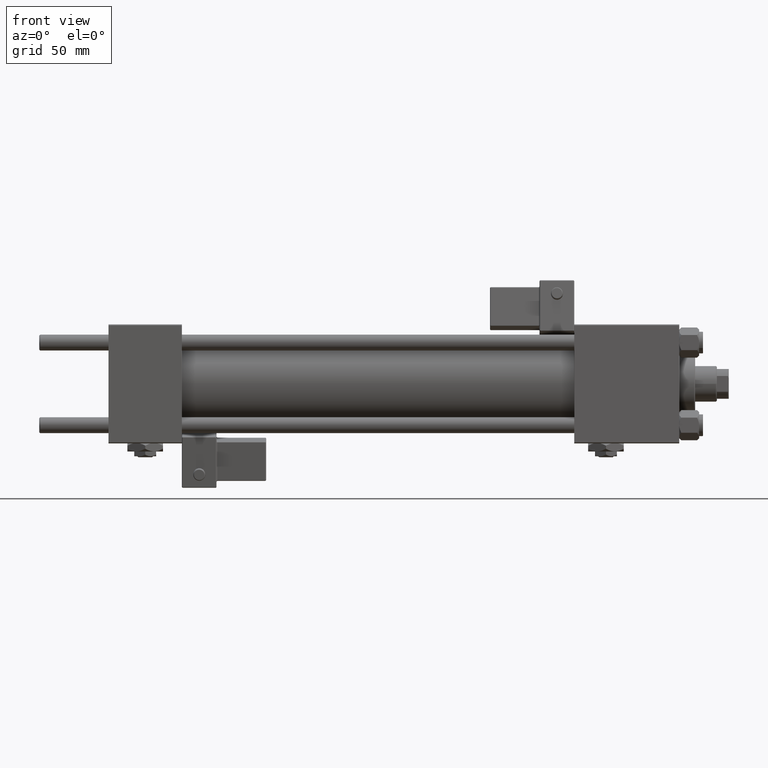
[diagram: clean part render]
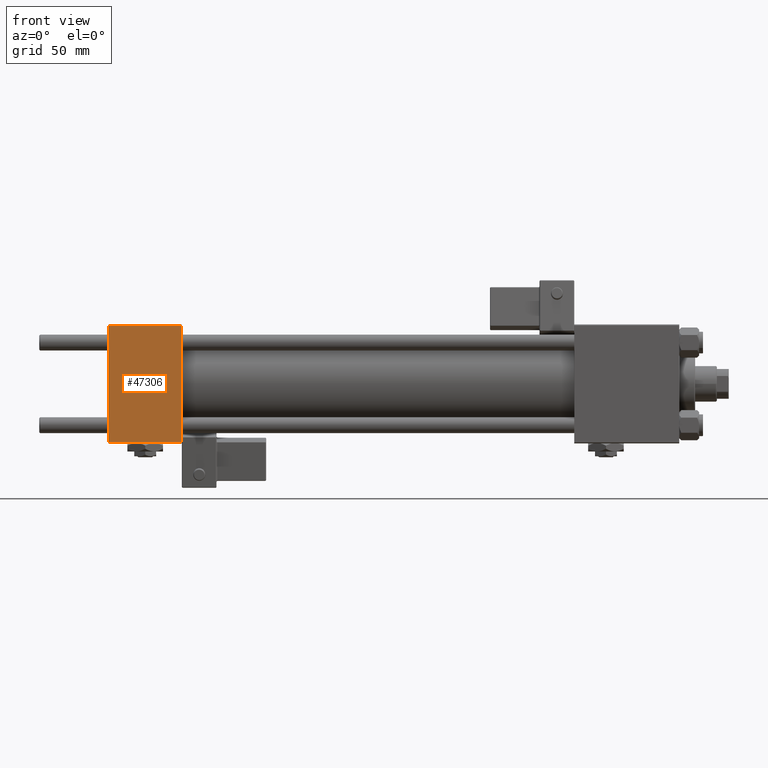
[diagram: same view with one face highlighted and labeled with its STEP entity id]
A machine part, front view. The second image highlights one B-rep face of the part: STEP entity #47306.
In plain terms, the highlighted planar face has unit normal (0, 1, 0).
Its self-contained STEP definition (entity closure, byte-faithful):
#3118 = CARTESIAN_POINT ( 'NONE',  ( 37.00000000000000000, -30.00000000000000000, 29.49999999999999289 ) ) ;
#3389 = LINE ( 'NONE', #3118, #20832 ) ;
#6400 = EDGE_CURVE ( 'NONE', #44910, #28987, #44502, .T. ) ;
#10009 = FACE_OUTER_BOUND ( 'NONE', #34285, .T. ) ;
#10231 = EDGE_CURVE ( 'NONE', #37184, #28987, #51829, .T. ) ;
#10865 = CARTESIAN_POINT ( 'NONE',  ( 37.00000000000000000, -30.00000000000000000, 29.99999999999999289 ) ) ;
#11414 = LINE ( 'NONE', #23978, #42577 ) ;
#13804 = PLANE ( 'NONE',  #45591 ) ;
#14041 = CARTESIAN_POINT ( 'NONE',  ( 37.00000000000000000, -30.00000000000000000, 29.49999999999999289 ) ) ;
#20832 = VECTOR ( 'NONE', #36764, 1000.000000000000000 ) ;
#21967 = ORIENTED_EDGE ( 'NONE', *, *, #6400, .F. ) ;
#22241 = DIRECTION ( 'NONE',  ( 1.000000000000000000, 0.000000000000000000, 0.000000000000000000 ) ) ;
#23978 = CARTESIAN_POINT ( 'NONE',  ( 0.000000000000000000, -30.00000000000000000, 29.99999999999999289 ) ) ;
#26668 = DIRECTION ( 'NONE',  ( 0.000000000000000000, -0.000000000000000000, 1.000000000000000000 ) ) ;
#28635 = DIRECTION ( 'NONE',  ( 0.000000000000000000, 0.000000000000000000, -1.000000000000000000 ) ) ;
#28987 = VERTEX_POINT ( 'NONE', #41829 ) ;
#31423 = VECTOR ( 'NONE', #22241, 1000.000000000000000 ) ;
#32568 = CARTESIAN_POINT ( 'NONE',  ( 0.000000000000000000, -30.00000000000000000, 29.49999999999999289 ) ) ;
#34285 = EDGE_LOOP ( 'NONE', ( #46796, #45468, #21967, #41465 ) ) ;
#34862 = EDGE_CURVE ( 'NONE', #45441, #37184, #11414, .T. ) ;
#35126 = CARTESIAN_POINT ( 'NONE',  ( 37.00000000000000000, -30.00000000000000000, -29.50000000000001776 ) ) ;
#35433 = DIRECTION ( 'NONE',  ( -0.000000000000000000, 1.000000000000000000, 0.000000000000000000 ) ) ;
#35750 = DIRECTION ( 'NONE',  ( 0.000000000000000000, 0.000000000000000000, -1.000000000000000000 ) ) ;
#36764 = DIRECTION ( 'NONE',  ( -1.000000000000000000, 0.000000000000000000, 0.000000000000000000 ) ) ;
#37184 = VERTEX_POINT ( 'NONE', #39906 ) ;
#39906 = CARTESIAN_POINT ( 'NONE',  ( 0.000000000000000000, -30.00000000000000000, -29.50000000000001776 ) ) ;
#41465 = ORIENTED_EDGE ( 'NONE', *, *, #53353, .T. ) ;
#41829 = CARTESIAN_POINT ( 'NONE',  ( 37.00000000000000000, -30.00000000000000000, -29.50000000000001776 ) ) ;
#42577 = VECTOR ( 'NONE', #28635, 1000.000000000000000 ) ;
#44502 = LINE ( 'NONE', #10865, #53111 ) ;
#44910 = VERTEX_POINT ( 'NONE', #14041 ) ;
#45441 = VERTEX_POINT ( 'NONE', #32568 ) ;
#45468 = ORIENTED_EDGE ( 'NONE', *, *, #10231, .T. ) ;
#45591 = AXIS2_PLACEMENT_3D ( 'NONE', #47232, #35433, #26668 ) ;
#46796 = ORIENTED_EDGE ( 'NONE', *, *, #34862, .T. ) ;
#47232 = CARTESIAN_POINT ( 'NONE',  ( 37.00000000000000000, -30.00000000000000000, 29.99999999999999289 ) ) ;
#47306 = ADVANCED_FACE ( 'NONE', ( #10009 ), #13804, .F. ) ;
#51829 = LINE ( 'NONE', #35126, #31423 ) ;
#53111 = VECTOR ( 'NONE', #35750, 1000.000000000000000 ) ;
#53353 = EDGE_CURVE ( 'NONE', #44910, #45441, #3389, .T. ) ;